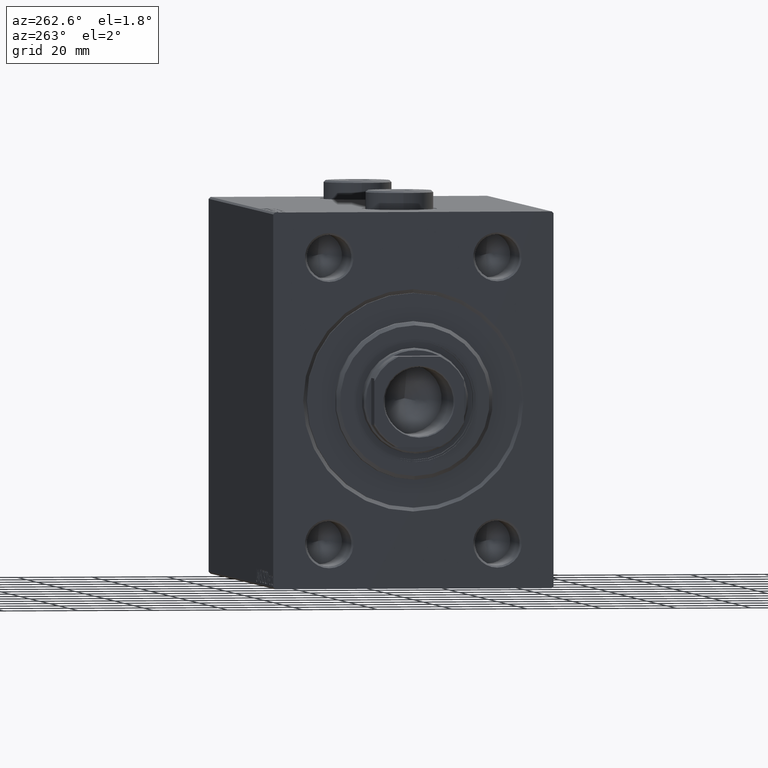
[diagram: clean part render]
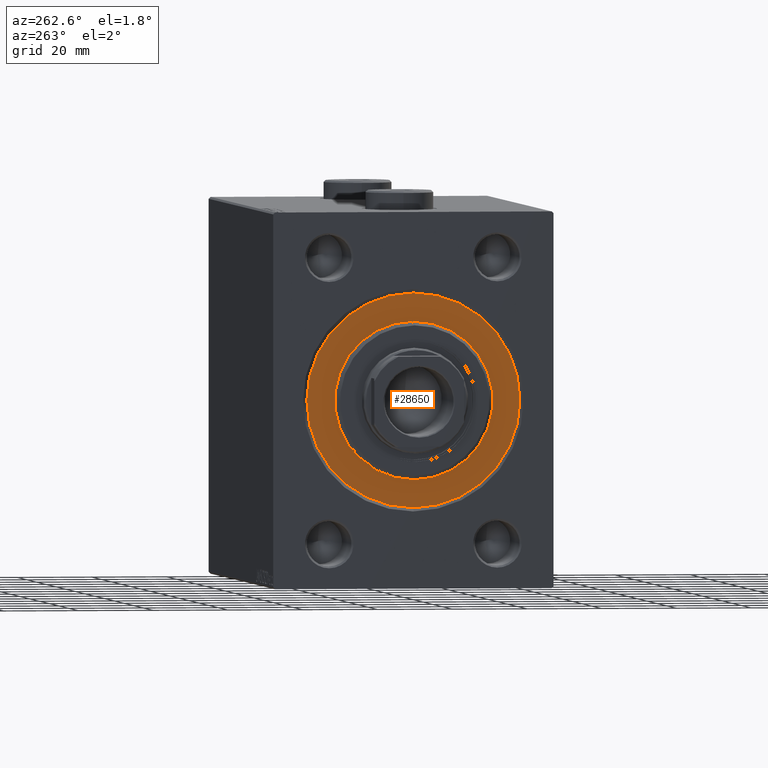
[diagram: same view with one face highlighted and labeled with its STEP entity id]
A machine part, auxiliary view. The second image highlights one B-rep face of the part: STEP entity #28650.
In plain terms, the highlighted planar face has unit normal (1, -0, -0).
Its self-contained STEP definition (entity closure, byte-faithful):
#2518 = CARTESIAN_POINT ( 'NONE',  ( 0.000000000000000000, 0.000000000000000000, 0.000000000000000000 ) ) ;
#2586 = AXIS2_PLACEMENT_3D ( 'NONE', #2518, #17277, #35551 ) ;
#2632 = EDGE_CURVE ( 'NONE', #25095, #6048, #45621, .T. ) ;
#6048 = VERTEX_POINT ( 'NONE', #33876 ) ;
#6668 = DIRECTION ( 'NONE',  ( 0.000000000000000000, 0.000000000000000000, -1.000000000000000000 ) ) ;
#12787 = CARTESIAN_POINT ( 'NONE',  ( 0.000000000000000000, 0.000000000000000000, 0.000000000000000000 ) ) ;
#12965 = AXIS2_PLACEMENT_3D ( 'NONE', #12787, #40982, #15568 ) ;
#15568 = DIRECTION ( 'NONE',  ( 0.000000000000000000, 0.000000000000000000, 1.000000000000000000 ) ) ;
#17277 = DIRECTION ( 'NONE',  ( -1.000000000000000000, 0.000000000000000000, 0.000000000000000000 ) ) ;
#18307 = DIRECTION ( 'NONE',  ( -1.000000000000000000, 0.000000000000000000, 0.000000000000000000 ) ) ;
#20263 = ORIENTED_EDGE ( 'NONE', *, *, #2632, .F. ) ;
#20286 = CIRCLE ( 'NONE', #34321, 28.50000000000000000 ) ;
#21303 = EDGE_CURVE ( 'NONE', #41749, #41386, #20286, .T. ) ;
#21755 = CIRCLE ( 'NONE', #37967, 21.00000000000000000 ) ;
#21787 = DIRECTION ( 'NONE',  ( 0.000000000000000000, 0.000000000000000000, 1.000000000000000000 ) ) ;
#22258 = EDGE_LOOP ( 'NONE', ( #36936, #25361 ) ) ;
#24118 = ORIENTED_EDGE ( 'NONE', *, *, #24626, .F. ) ;
#24626 = EDGE_CURVE ( 'NONE', #6048, #25095, #21755, .T. ) ;
#25095 = VERTEX_POINT ( 'NONE', #28460 ) ;
#25272 = EDGE_CURVE ( 'NONE', #41386, #41749, #26210, .T. ) ;
#25361 = ORIENTED_EDGE ( 'NONE', *, *, #21303, .F. ) ;
#26210 = CIRCLE ( 'NONE', #2586, 28.50000000000000000 ) ;
#26428 = AXIS2_PLACEMENT_3D ( 'NONE', #38820, #34459, #31461 ) ;
#28460 = CARTESIAN_POINT ( 'NONE',  ( 0.000000000000000000, 0.000000000000000000, 21.00000000000000000 ) ) ;
#28650 = ADVANCED_FACE ( 'NONE', ( #30384, #40755 ), #44460, .F. ) ;
#29193 = CARTESIAN_POINT ( 'NONE',  ( 0.000000000000000000, 0.000000000000000000, 0.000000000000000000 ) ) ;
#30384 = FACE_BOUND ( 'NONE', #40631, .T. ) ;
#31461 = DIRECTION ( 'NONE',  ( 0.000000000000000000, 0.000000000000000000, -1.000000000000000000 ) ) ;
#33876 = CARTESIAN_POINT ( 'NONE',  ( 0.000000000000000000, 2.571758278209441661E-15, -21.00000000000000000 ) ) ;
#34321 = AXIS2_PLACEMENT_3D ( 'NONE', #29193, #18307, #21787 ) ;
#34459 = DIRECTION ( 'NONE',  ( 1.000000000000000000, -0.000000000000000000, 0.000000000000000000 ) ) ;
#35314 = DIRECTION ( 'NONE',  ( 1.000000000000000000, -0.000000000000000000, 0.000000000000000000 ) ) ;
#35551 = DIRECTION ( 'NONE',  ( 0.000000000000000000, 0.000000000000000000, 1.000000000000000000 ) ) ;
#36936 = ORIENTED_EDGE ( 'NONE', *, *, #25272, .F. ) ;
#37770 = CARTESIAN_POINT ( 'NONE',  ( 0.000000000000000000, 3.490243377569956456E-15, 28.50000000000000000 ) ) ;
#37967 = AXIS2_PLACEMENT_3D ( 'NONE', #45722, #35314, #6668 ) ;
#38820 = CARTESIAN_POINT ( 'NONE',  ( 0.000000000000000000, 0.000000000000000000, 0.000000000000000000 ) ) ;
#40164 = CARTESIAN_POINT ( 'NONE',  ( 0.000000000000000000, 0.000000000000000000, -28.50000000000000000 ) ) ;
#40631 = EDGE_LOOP ( 'NONE', ( #20263, #24118 ) ) ;
#40755 = FACE_OUTER_BOUND ( 'NONE', #22258, .T. ) ;
#40982 = DIRECTION ( 'NONE',  ( -1.000000000000000000, 0.000000000000000000, 0.000000000000000000 ) ) ;
#41386 = VERTEX_POINT ( 'NONE', #40164 ) ;
#41749 = VERTEX_POINT ( 'NONE', #37770 ) ;
#44460 = PLANE ( 'NONE',  #12965 ) ;
#45621 = CIRCLE ( 'NONE', #26428, 21.00000000000000000 ) ;
#45722 = CARTESIAN_POINT ( 'NONE',  ( 0.000000000000000000, 0.000000000000000000, 0.000000000000000000 ) ) ;